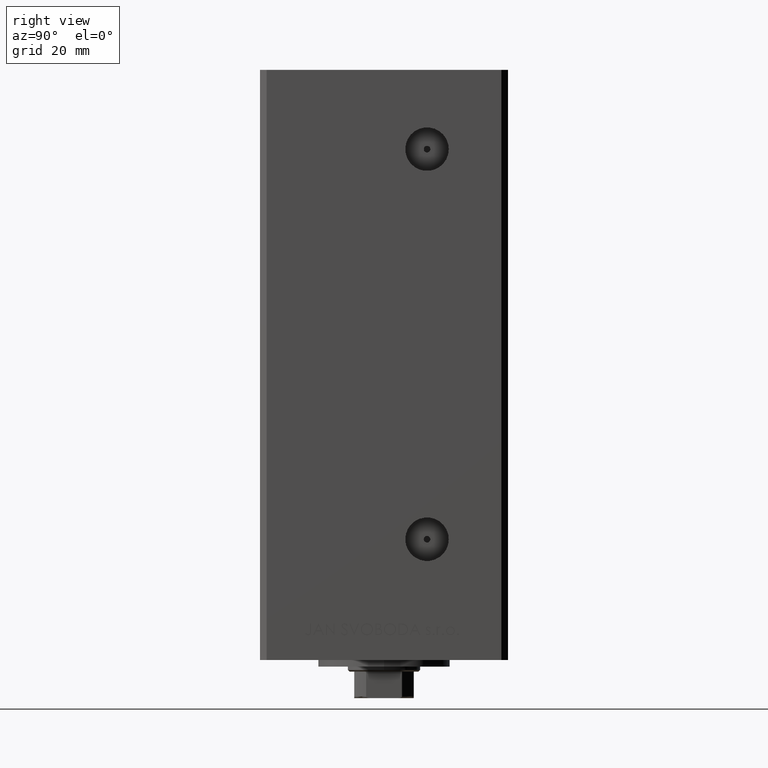
[diagram: clean part render]
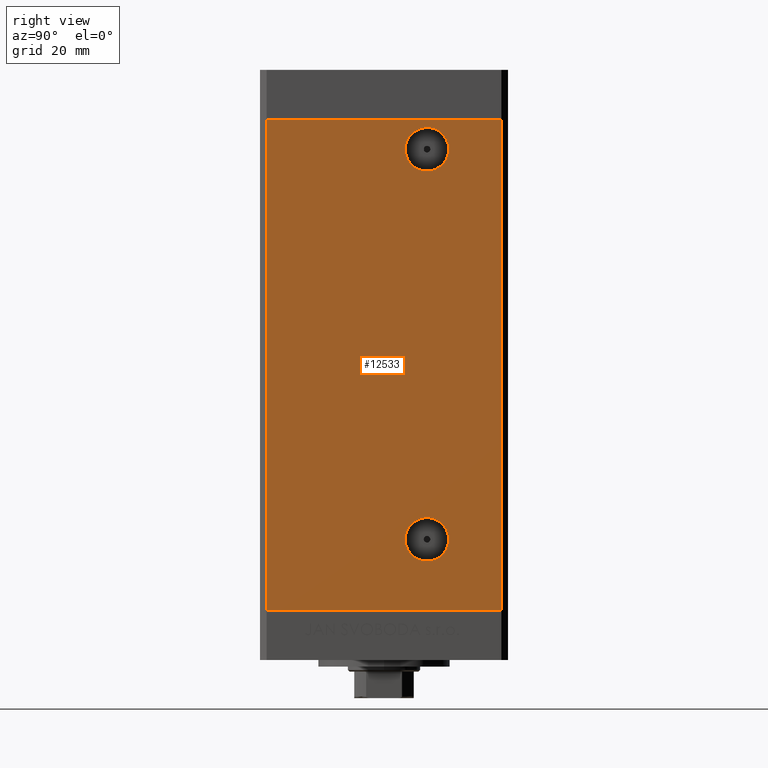
[diagram: same view with one face highlighted and labeled with its STEP entity id]
A machine part, right view. The second image highlights one B-rep face of the part: STEP entity #12533.
In plain terms, the highlighted planar face has unit normal (1, -0, 0).
Its self-contained STEP definition (entity closure, byte-faithful):
#2014 = CARTESIAN_POINT ( 'NONE',  ( 42.49999999999998579, -35.50000000000000711, 148.5000000000000000 ) ) ;
#2394 = LINE ( 'NONE', #10098, #39858 ) ;
#4146 = CIRCLE ( 'NONE', #9665, 6.580000000000008065 ) ;
#4160 = VERTEX_POINT ( 'NONE', #21876 ) ;
#6848 = ORIENTED_EDGE ( 'NONE', *, *, #25438, .T. ) ;
#6987 = AXIS2_PLACEMENT_3D ( 'NONE', #44590, #22845, #19116 ) ;
#8295 = DIRECTION ( 'NONE',  ( 2.931927001650941360E-16, 1.000000000000000000, 0.000000000000000000 ) ) ;
#8505 = AXIS2_PLACEMENT_3D ( 'NONE', #10868, #23057, #49211 ) ;
#8970 = EDGE_CURVE ( 'NONE', #15456, #46858, #2394, .T. ) ;
#9007 = LINE ( 'NONE', #20706, #32797 ) ;
#9665 = AXIS2_PLACEMENT_3D ( 'NONE', #29197, #17979, #10986 ) ;
#9703 = ORIENTED_EDGE ( 'NONE', *, *, #45229, .F. ) ;
#10098 = CARTESIAN_POINT ( 'NONE',  ( 42.50000000000000711, 35.50000000000001421, 0.000000000000000000 ) ) ;
#10868 = CARTESIAN_POINT ( 'NONE',  ( 42.49999999999999289, 13.00000000000000000, 139.4999999999999716 ) ) ;
#10986 = DIRECTION ( 'NONE',  ( 0.000000000000000000, 1.000000000000000000, 0.000000000000000000 ) ) ;
#11538 = VERTEX_POINT ( 'NONE', #26793 ) ;
#11673 = EDGE_CURVE ( 'NONE', #21494, #15456, #9007, .T. ) ;
#12069 = VECTOR ( 'NONE', #21420, 1000.000000000000000 ) ;
#12457 = CARTESIAN_POINT ( 'NONE',  ( 42.49999999999999289, 6.419999999999993712, 21.49999999999997868 ) ) ;
#12533 = ADVANCED_FACE ( 'NONE', ( #26738, #26487, #22989 ), #30722, .T. ) ;
#12542 = CIRCLE ( 'NONE', #6987, 6.580000000000008065 ) ;
#13911 = DIRECTION ( 'NONE',  ( 0.000000000000000000, 1.000000000000000000, 0.000000000000000000 ) ) ;
#14128 = CARTESIAN_POINT ( 'NONE',  ( 42.49999999999999289, 19.58000000000001251, 139.4999999999999716 ) ) ;
#15456 = VERTEX_POINT ( 'NONE', #24655 ) ;
#15751 = ORIENTED_EDGE ( 'NONE', *, *, #21513, .F. ) ;
#15909 = VERTEX_POINT ( 'NONE', #14128 ) ;
#16514 = CARTESIAN_POINT ( 'NONE',  ( 42.49999999999998579, -35.50000000000000711, 148.5000000000000000 ) ) ;
#16592 = EDGE_LOOP ( 'NONE', ( #21943, #45497, #6848, #44589 ) ) ;
#17904 = DIRECTION ( 'NONE',  ( 1.000000000000000000, -2.275047181608927644E-16, 0.000000000000000000 ) ) ;
#17979 = DIRECTION ( 'NONE',  ( 1.000000000000000000, -2.275047181608927644E-16, 0.000000000000000000 ) ) ;
#18297 = EDGE_CURVE ( 'NONE', #4160, #15909, #39508, .T. ) ;
#18677 = CIRCLE ( 'NONE', #28241, 6.580000000000014282 ) ;
#19116 = DIRECTION ( 'NONE',  ( 0.000000000000000000, 1.000000000000000000, 0.000000000000000000 ) ) ;
#20706 = CARTESIAN_POINT ( 'NONE',  ( 42.50000000000000711, 35.50000000000001421, 148.5000000000000000 ) ) ;
#21420 = DIRECTION ( 'NONE',  ( -0.000000000000000000, -0.000000000000000000, -1.000000000000000000 ) ) ;
#21494 = VERTEX_POINT ( 'NONE', #45759 ) ;
#21513 = EDGE_CURVE ( 'NONE', #38296, #11538, #12542, .T. ) ;
#21876 = CARTESIAN_POINT ( 'NONE',  ( 42.49999999999999289, 6.419999999999983942, 139.4999999999999716 ) ) ;
#21943 = ORIENTED_EDGE ( 'NONE', *, *, #8970, .F. ) ;
#22775 = CARTESIAN_POINT ( 'NONE',  ( 42.50000000000000711, 35.50000000000001421, 148.5000000000000000 ) ) ;
#22845 = DIRECTION ( 'NONE',  ( 1.000000000000000000, -2.275047181608927644E-16, 0.000000000000000000 ) ) ;
#22989 = FACE_OUTER_BOUND ( 'NONE', #16592, .T. ) ;
#23057 = DIRECTION ( 'NONE',  ( 1.000000000000000000, -2.275047181608927644E-16, 0.000000000000000000 ) ) ;
#24655 = CARTESIAN_POINT ( 'NONE',  ( 42.50000000000000711, 35.50000000000001421, 0.000000000000000000 ) ) ;
#25296 = DIRECTION ( 'NONE',  ( -2.931927001650941360E-16, -1.000000000000000000, 0.000000000000000000 ) ) ;
#25438 = EDGE_CURVE ( 'NONE', #21494, #25696, #37481, .T. ) ;
#25696 = VERTEX_POINT ( 'NONE', #16514 ) ;
#26487 = FACE_BOUND ( 'NONE', #40791, .T. ) ;
#26738 = FACE_BOUND ( 'NONE', #31774, .T. ) ;
#26793 = CARTESIAN_POINT ( 'NONE',  ( 42.49999999999999289, 19.58000000000000540, 21.49999999999997868 ) ) ;
#26981 = CARTESIAN_POINT ( 'NONE',  ( 42.50000000000000711, 35.50000000000001421, 148.5000000000000000 ) ) ;
#28241 = AXIS2_PLACEMENT_3D ( 'NONE', #48783, #17904, #13911 ) ;
#28908 = LINE ( 'NONE', #2014, #12069 ) ;
#29197 = CARTESIAN_POINT ( 'NONE',  ( 42.49999999999999289, 13.00000000000000000, 21.49999999999997868 ) ) ;
#29737 = ORIENTED_EDGE ( 'NONE', *, *, #34625, .F. ) ;
#30722 = PLANE ( 'NONE',  #33613 ) ;
#30960 = DIRECTION ( 'NONE',  ( 1.000000000000000000, -2.931927001650941360E-16, 0.000000000000000000 ) ) ;
#31774 = EDGE_LOOP ( 'NONE', ( #29737, #15751 ) ) ;
#31926 = DIRECTION ( 'NONE',  ( -0.000000000000000000, -0.000000000000000000, -1.000000000000000000 ) ) ;
#32797 = VECTOR ( 'NONE', #31926, 1000.000000000000000 ) ;
#33613 = AXIS2_PLACEMENT_3D ( 'NONE', #26981, #30960, #8295 ) ;
#34079 = VECTOR ( 'NONE', #37740, 1000.000000000000000 ) ;
#34389 = ORIENTED_EDGE ( 'NONE', *, *, #18297, .F. ) ;
#34625 = EDGE_CURVE ( 'NONE', #11538, #38296, #4146, .T. ) ;
#37481 = LINE ( 'NONE', #22775, #34079 ) ;
#37740 = DIRECTION ( 'NONE',  ( -2.931927001650941360E-16, -1.000000000000000000, 0.000000000000000000 ) ) ;
#38296 = VERTEX_POINT ( 'NONE', #12457 ) ;
#39508 = CIRCLE ( 'NONE', #8505, 6.580000000000014282 ) ;
#39858 = VECTOR ( 'NONE', #25296, 1000.000000000000000 ) ;
#40791 = EDGE_LOOP ( 'NONE', ( #9703, #34389 ) ) ;
#44431 = CARTESIAN_POINT ( 'NONE',  ( 42.49999999999998579, -35.50000000000000711, 0.000000000000000000 ) ) ;
#44589 = ORIENTED_EDGE ( 'NONE', *, *, #48492, .T. ) ;
#44590 = CARTESIAN_POINT ( 'NONE',  ( 42.49999999999999289, 13.00000000000000000, 21.49999999999997868 ) ) ;
#45229 = EDGE_CURVE ( 'NONE', #15909, #4160, #18677, .T. ) ;
#45497 = ORIENTED_EDGE ( 'NONE', *, *, #11673, .F. ) ;
#45759 = CARTESIAN_POINT ( 'NONE',  ( 42.50000000000000711, 35.50000000000001421, 148.5000000000000000 ) ) ;
#46858 = VERTEX_POINT ( 'NONE', #44431 ) ;
#48492 = EDGE_CURVE ( 'NONE', #25696, #46858, #28908, .T. ) ;
#48783 = CARTESIAN_POINT ( 'NONE',  ( 42.49999999999999289, 13.00000000000000000, 139.4999999999999716 ) ) ;
#49211 = DIRECTION ( 'NONE',  ( 0.000000000000000000, 1.000000000000000000, 0.000000000000000000 ) ) ;